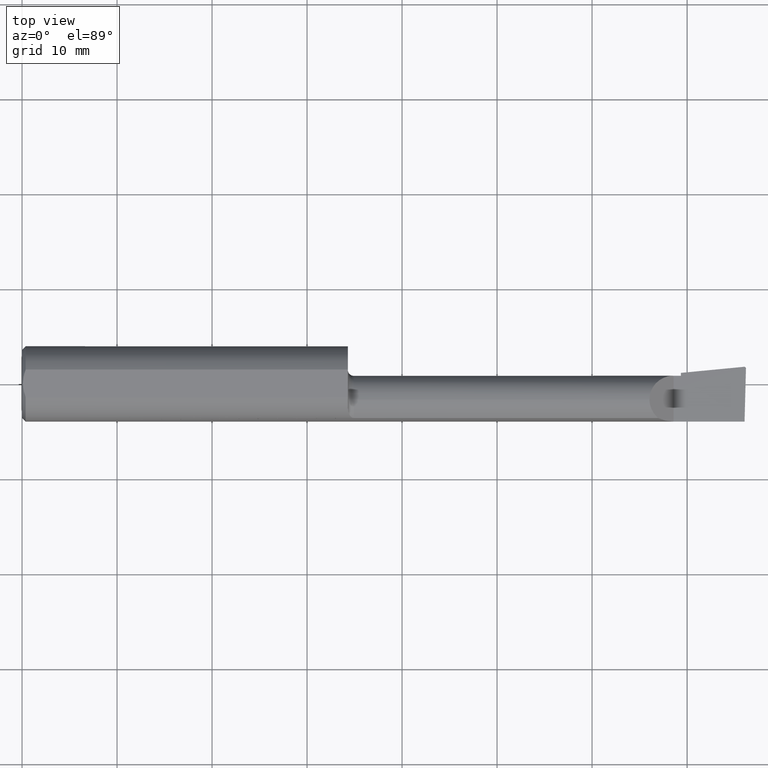
[diagram: clean part render]
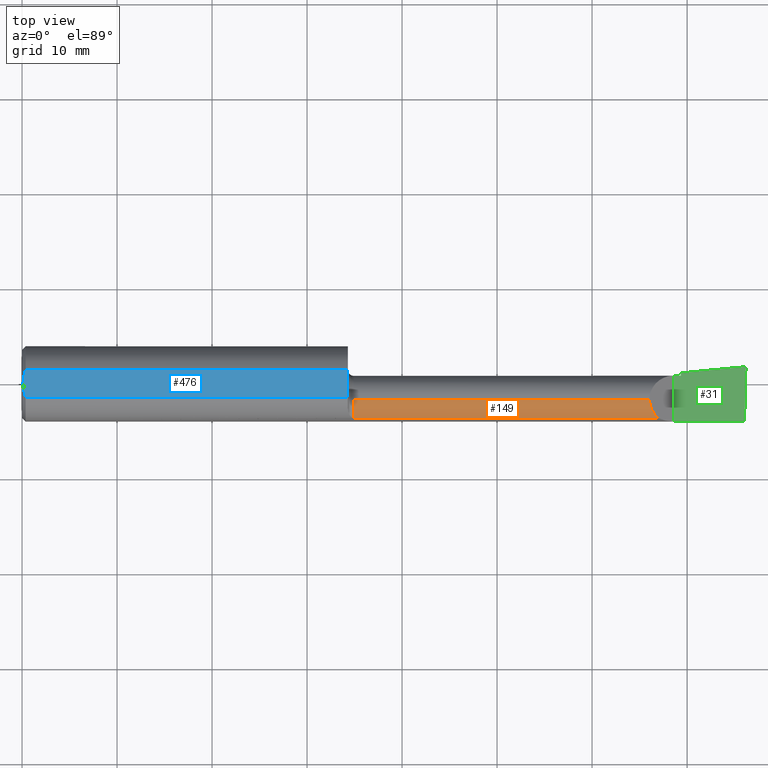
[diagram: same view with three faces highlighted in distinct colors, each labeled with its STEP entity id]
A machine part, top view with three faces highlighted in distinct colors.
Their STEP definitions:

[orange] entity #149 — the highlighted cylindrical surface (edge-blend (fillet) strip) has radius 2.5375 mm, axis along (-1, -0, -0).
#2 = CARTESIAN_POINT ( 'NONE',  ( 0.000000000000000000, -0.06599999999999998923, 0.000000000000000000 ) ) ;
#34 = ORIENTED_EDGE ( 'NONE', *, *, #321, .F. ) ;
#36 = CARTESIAN_POINT ( 'NONE',  ( 2.600099999999999412, -0.09571819601686556989, 0.09989999999999998881 ) ) ;
#40 = VECTOR ( 'NONE', #169, 39.37007874015748143 ) ;
#43 = DIRECTION ( 'NONE',  ( 0.000000000000000000, 0.000000000000000000, 1.000000000000000000 ) ) ;
#54 = VECTOR ( 'NONE', #591, 39.37007874015748143 ) ;
#71 = CARTESIAN_POINT ( 'NONE',  ( 1.375000000000000222, -0.06599999999999998923, 0.09989999999999990554 ) ) ;
#96 = CARTESIAN_POINT ( 'NONE',  ( 2.635154559332284041, -0.1419939393939393946, 0.06484544066771590065 ) ) ;
#149 = ADVANCED_FACE ( 'NONE', ( #446 ), #566, .T. ) ;
#156 = VERTEX_POINT ( 'NONE', #323 ) ;
#157 = CARTESIAN_POINT ( 'NONE',  ( 2.612547924827750112, -0.1227037540429563867, 0.08745207517224931615 ) ) ;
#169 = DIRECTION ( 'NONE',  ( -1.000000000000000000, -0.000000000000000000, -0.000000000000000000 ) ) ;
#190 = VERTEX_POINT ( 'NONE', #71 ) ;
#204 = ORIENTED_EDGE ( 'NONE', *, *, #697, .T. ) ;
#211 = DIRECTION ( 'NONE',  ( 0.000000000000000000, 0.000000000000000000, 1.000000000000000000 ) ) ;
#259 = CARTESIAN_POINT ( 'NONE',  ( 1.375000000000000222, -0.1419939393939392003, 0.06484544066771598392 ) ) ;
#283 = LINE ( 'NONE', #536, #54 ) ;
#292 = EDGE_LOOP ( 'NONE', ( #778, #582, #34, #204 ) ) ;
#295 = CARTESIAN_POINT ( 'NONE',  ( 0.000000000000000000, -0.06599999999999998923, 0.09989999999999998881 ) ) ;
#297 = EDGE_CURVE ( 'NONE', #156, #190, #470, .T. ) ;
#321 = EDGE_CURVE ( 'NONE', #631, #190, #518, .T. ) ;
#323 = CARTESIAN_POINT ( 'NONE',  ( 2.600099999999999412, -0.06599999999999998923, 0.09989999999999998881 ) ) ;
#404 = CARTESIAN_POINT ( 'NONE',  ( 2.600099999999999412, -0.06599999999999998923, 0.09989999999999998881 ) ) ;
#416 = AXIS2_PLACEMENT_3D ( 'NONE', #531, #783, #43 ) ;
#446 = FACE_OUTER_BOUND ( 'NONE', #292, .T. ) ;
#449 = DIRECTION ( 'NONE',  ( -1.000000000000000000, -0.000000000000000000, -0.000000000000000000 ) ) ;
#470 = LINE ( 'NONE', #295, #40 ) ;
#518 = CIRCLE ( 'NONE', #416, 0.09989999999999990554 ) ;
#531 = CARTESIAN_POINT ( 'NONE',  ( 1.375000000000000222, -0.06599999999999998923, 0.000000000000000000 ) ) ;
#536 = CARTESIAN_POINT ( 'NONE',  ( 2.052500000000000213, -0.1419939393939393391, 0.06484544066771595616 ) ) ;
#560 =( BOUNDED_CURVE ( )  B_SPLINE_CURVE ( 3, ( #96, #157, #36, #404 ),
 .UNSPECIFIED., .F., .T. ) 
 B_SPLINE_CURVE_WITH_KNOTS ( ( 4, 4 ),
 ( 5.418794317430680074, 6.283185307179586232 ),
 .UNSPECIFIED. ) 
 CURVE ( )  GEOMETRIC_REPRESENTATION_ITEM ( )  RATIONAL_B_SPLINE_CURVE ( ( 1.000000000000000000, 0.9386988813357770578, 0.9386988813357770578, 1.000000000000000000 ) ) 
 REPRESENTATION_ITEM ( '' )  );
#566 = CYLINDRICAL_SURFACE ( 'NONE', #755, 0.09989999999999998881 ) ;
#582 = ORIENTED_EDGE ( 'NONE', *, *, #297, .T. ) ;
#591 = DIRECTION ( 'NONE',  ( 1.000000000000000000, 0.000000000000000000, 0.000000000000000000 ) ) ;
#631 = VERTEX_POINT ( 'NONE', #259 ) ;
#653 = CARTESIAN_POINT ( 'NONE',  ( 2.635154559332284041, -0.1419939393939393946, 0.06484544066771590065 ) ) ;
#694 = EDGE_CURVE ( 'NONE', #724, #156, #560, .T. ) ;
#697 = EDGE_CURVE ( 'NONE', #631, #724, #283, .T. ) ;
#724 = VERTEX_POINT ( 'NONE', #653 ) ;
#755 = AXIS2_PLACEMENT_3D ( 'NONE', #2, #449, #211 ) ;
#778 = ORIENTED_EDGE ( 'NONE', *, *, #694, .T. ) ;
#783 = DIRECTION ( 'NONE',  ( -1.000000000000000000, -0.000000000000000000, -0.000000000000000000 ) ) ;

[blue] entity #476 — the highlighted planar face has unit normal (0, -0, -1).
#5 = CARTESIAN_POINT ( 'NONE',  ( 1.350000000000000311, 0.05756040305626788228, 0.1450999999999999512 ) ) ;
#28 = CARTESIAN_POINT ( 'NONE',  ( 0.004000000000000238608, 1.884449684559922719E-17, 0.1450999999999999790 ) ) ;
#50 = CARTESIAN_POINT ( 'NONE',  ( 0.01499999999999999424, -0.05756040305626774350, 0.1451000000000000068 ) ) ;
#67 = VECTOR ( 'NONE', #633, 39.37007874015748143 ) ;
#76 = CARTESIAN_POINT ( 'NONE',  ( 0.004000000000000238608, 1.884449684559922719E-17, 0.1450999999999999790 ) ) ;
#91 = CARTESIAN_POINT ( 'NONE',  ( 0.008818052469297050708, -0.03886761757380372689, 0.1451000000000000068 ) ) ;
#110 = LINE ( 'NONE', #386, #808 ) ;
#124 = CARTESIAN_POINT ( 'NONE',  ( 0.005030132703184962174, 0.01970541148932064557, 0.1451000000000000068 ) ) ;
#132 = CARTESIAN_POINT ( 'NONE',  ( 1.350000000000000311, 0.2061000000000000332, 0.1450999999999999512 ) ) ;
#155 = CARTESIAN_POINT ( 'NONE',  ( 0.01161840624095555018, -0.04838974479540033430, 0.1451000000000000345 ) ) ;
#166 = DIRECTION ( 'NONE',  ( -1.000000000000000000, -0.000000000000000000, -0.000000000000000000 ) ) ;
#195 = VERTEX_POINT ( 'NONE', #5 ) ;
#244 = CARTESIAN_POINT ( 'NONE',  ( 3.000000000000000444, 0.2061000000000000332, 0.1450999999999999512 ) ) ;
#245 = EDGE_CURVE ( 'NONE', #195, #320, #514, .T. ) ;
#252 = DIRECTION ( 'NONE',  ( 0.000000000000000000, 1.000000000000000000, -1.656870447394628358E-16 ) ) ;
#267 = ORIENTED_EDGE ( 'NONE', *, *, #524, .F. ) ;
#281 = EDGE_CURVE ( 'NONE', #320, #455, #718, .T. ) ;
#287 = CARTESIAN_POINT ( 'NONE',  ( 1.350000000000000311, -0.05756040305626776432, 0.1451000000000000068 ) ) ;
#293 = VECTOR ( 'NONE', #166, 39.37007874015748143 ) ;
#300 = ORIENTED_EDGE ( 'NONE', *, *, #281, .F. ) ;
#320 = VERTEX_POINT ( 'NONE', #287 ) ;
#339 = CARTESIAN_POINT ( 'NONE',  ( 0.005011318927233133005, -0.01959047621504276041, 0.1450999999999999790 ) ) ;
#356 = CARTESIAN_POINT ( 'NONE',  ( 0.004000000000000188301, 0.009855731042683137794, 0.1450999999999999790 ) ) ;
#359 = VERTEX_POINT ( 'NONE', #657 ) ;
#360 = DIRECTION ( 'NONE',  ( 0.000000000000000000, -1.656870447394628358E-16, -1.000000000000000000 ) ) ;
#368 = CARTESIAN_POINT ( 'NONE',  ( 0.01499999999999999424, 0.05756040305626788228, 0.1450999999999999235 ) ) ;
#372 = ORIENTED_EDGE ( 'NONE', *, *, #245, .F. ) ;
#379 = EDGE_CURVE ( 'NONE', #455, #667, #495, .T. ) ;
#382 = DIRECTION ( 'NONE',  ( 1.000000000000000000, 0.000000000000000000, 0.000000000000000000 ) ) ;
#386 = CARTESIAN_POINT ( 'NONE',  ( 0.000000000000000000, 0.05756040305626788228, 0.1450999999999999235 ) ) ;
#418 = EDGE_CURVE ( 'NONE', #667, #359, #430, .T. ) ;
#422 = PLANE ( 'NONE',  #769 ) ;
#424 = CARTESIAN_POINT ( 'NONE',  ( 0.01158831187866387127, 0.04830813087846574233, 0.1450999999999999512 ) ) ;
#426 = ORIENTED_EDGE ( 'NONE', *, *, #379, .F. ) ;
#430 = B_SPLINE_CURVE_WITH_KNOTS ( 'NONE', 3,
 ( #607, #356, #124, #493, #424, #368 ),
 .UNSPECIFIED., .F., .F.,
 ( 4, 2, 4 ),
 ( 0.002889203944960327779, 0.003632851267233512538, 0.004376498589506697297 ),
 .UNSPECIFIED. ) ;
#455 = VERTEX_POINT ( 'NONE', #50 ) ;
#476 = ADVANCED_FACE ( 'NONE', ( #551 ), #422, .F. ) ;
#493 = CARTESIAN_POINT ( 'NONE',  ( 0.008823987512428478272, 0.03887788046871691605, 0.1450999999999999790 ) ) ;
#495 = B_SPLINE_CURVE_WITH_KNOTS ( 'NONE', 3,
 ( #707, #155, #91, #339, #589, #28 ),
 .UNSPECIFIED., .F., .F.,
 ( 4, 2, 4 ),
 ( 0.001402484879066372495, 0.002145844412013350570, 0.002889203944960327779 ),
 .UNSPECIFIED. ) ;
#514 = LINE ( 'NONE', #132, #67 ) ;
#524 = EDGE_CURVE ( 'NONE', #359, #195, #110, .T. ) ;
#551 = FACE_OUTER_BOUND ( 'NONE', #656, .T. ) ;
#589 = CARTESIAN_POINT ( 'NONE',  ( 0.004000000000000188301, -0.009851916903761191377, 0.1450999999999999512 ) ) ;
#607 = CARTESIAN_POINT ( 'NONE',  ( 0.004000000000000238608, 1.884449684559922719E-17, 0.1450999999999999790 ) ) ;
#633 = DIRECTION ( 'NONE',  ( 0.000000000000000000, -1.000000000000000000, 1.656870447394628358E-16 ) ) ;
#634 = ORIENTED_EDGE ( 'NONE', *, *, #418, .F. ) ;
#656 = EDGE_LOOP ( 'NONE', ( #372, #267, #634, #426, #300 ) ) ;
#657 = CARTESIAN_POINT ( 'NONE',  ( 0.01499999999999999424, 0.05756040305626788228, 0.1450999999999999235 ) ) ;
#667 = VERTEX_POINT ( 'NONE', #76 ) ;
#707 = CARTESIAN_POINT ( 'NONE',  ( 0.01499999999999999424, -0.05756040305626774350, 0.1451000000000000068 ) ) ;
#710 = CARTESIAN_POINT ( 'NONE',  ( 0.000000000000000000, -0.05756040305626783371, 0.1450999999999999512 ) ) ;
#718 = LINE ( 'NONE', #710, #293 ) ;
#769 = AXIS2_PLACEMENT_3D ( 'NONE', #244, #360, #252 ) ;
#808 = VECTOR ( 'NONE', #382, 39.37007874015748143 ) ;

[green] entity #31 — the highlighted planar face has unit normal (-0, 0, -1).
#6 = EDGE_LOOP ( 'NONE', ( #242, #39, #606, #406, #511, #331, #44, #317 ) ) ;
#17 = LINE ( 'NONE', #759, #728 ) ;
#31 = ADVANCED_FACE ( 'NONE', ( #681 ), #51, .F. ) ;
#38 = CARTESIAN_POINT ( 'NONE',  ( 2.993512870449295704, 0.07124616680637038679, -8.537024980200822558E-17 ) ) ;
#39 = ORIENTED_EDGE ( 'NONE', *, *, #506, .T. ) ;
#44 = ORIENTED_EDGE ( 'NONE', *, *, #641, .F. ) ;
#51 = PLANE ( 'NONE',  #599 ) ;
#55 = DIRECTION ( 'NONE',  ( -1.460108795288649722E-16, 0.000000000000000000, -1.000000000000000000 ) ) ;
#56 = CARTESIAN_POINT ( 'NONE',  ( 2.999910038027484571, 0.06846449087509602627, -6.926818219033491601E-17 ) ) ;
#58 = VERTEX_POINT ( 'NONE', #800 ) ;
#66 = VECTOR ( 'NONE', #141, 39.37007874015748143 ) ;
#99 = EDGE_CURVE ( 'NONE', #217, #461, #742, .T. ) ;
#105 = VECTOR ( 'NONE', #576, 39.37007874015748143 ) ;
#107 = CARTESIAN_POINT ( 'NONE',  ( 2.999806390372760756, 0.06450634663141942282, -6.825008366731280479E-17 ) ) ;
#111 = CARTESIAN_POINT ( 'NONE',  ( 3.000000000000000444, -0.2500000000000000555, -6.829619984160658046E-17 ) ) ;
#131 = VECTOR ( 'NONE', #350, 39.37007874015748854 ) ;
#140 = CARTESIAN_POINT ( 'NONE',  ( 2.700000000000000178, -0.1560999999999999888, -2.449293598294708386E-17 ) ) ;
#141 = DIRECTION ( 'NONE',  ( 0.000000000000000000, 1.000000000000000000, 0.000000000000000000 ) ) ;
#143 = EDGE_CURVE ( 'NONE', #523, #571, #688, .T. ) ;
#173 = CARTESIAN_POINT ( 'NONE',  ( 2.993512870449295704, 0.07124616680637038679, -8.537024980200822558E-17 ) ) ;
#193 = LINE ( 'NONE', #684, #105 ) ;
#194 = CARTESIAN_POINT ( 'NONE',  ( 2.729999999999999982, -0.2500000000000000555, -2.887326236881301627E-17 ) ) ;
#196 = DIRECTION ( 'NONE',  ( -0.000000000000000000, 1.000000000000000000, -0.000000000000000000 ) ) ;
#217 = VERTEX_POINT ( 'NONE', #577 ) ;
#219 = CARTESIAN_POINT ( 'NONE',  ( 2.700000000000000178, 0.03389999999999994407, -2.449293598294708386E-17 ) ) ;
#231 = CARTESIAN_POINT ( 'NONE',  ( 2.993108609909204798, 0.07123643460739943756, -6.827509968873246391E-17 ) ) ;
#242 = ORIENTED_EDGE ( 'NONE', *, *, #367, .T. ) ;
#248 = CARTESIAN_POINT ( 'NONE',  ( 2.994029609882220999, -0.1561000000000000165, -6.741913824051282974E-17 ) ) ;
#285 = VERTEX_POINT ( 'NONE', #219 ) ;
#315 = LINE ( 'NONE', #436, #640 ) ;
#316 = DIRECTION ( 'NONE',  ( -1.000000000000000000, -0.000000000000000000, -0.000000000000000000 ) ) ;
#317 = ORIENTED_EDGE ( 'NONE', *, *, #143, .F. ) ;
#331 = ORIENTED_EDGE ( 'NONE', *, *, #581, .F. ) ;
#342 = CARTESIAN_POINT ( 'NONE',  ( 2.992906680581874923, 0.07121699102466755305, -6.726049803458688058E-17 ) ) ;
#350 = DIRECTION ( 'NONE',  ( 0.02617694830780385035, 0.9996573249755590362, -3.765352607662575481E-18 ) ) ;
#354 = CARTESIAN_POINT ( 'NONE',  ( 2.997312560284805638, 0.07124616680637020638, -6.888892218056962819E-17 ) ) ;
#358 =( BOUNDED_CURVE ( )  B_SPLINE_CURVE ( 3, ( #38, #787, #231, #342 ),
 .UNSPECIFIED., .F., .T. ) 
 B_SPLINE_CURVE_WITH_KNOTS ( ( 4, 4 ),
 ( 3.511516179717425690, 3.604018710825942495 ),
 .UNSPECIFIED. ) 
 CURVE ( )  GEOMETRIC_REPRESENTATION_ITEM ( )  RATIONAL_B_SPLINE_CURVE ( ( 1.000000000000000000, 0.9992870672494020834, 0.9992870672494020834, 1.000000000000000000 ) ) 
 REPRESENTATION_ITEM ( '' )  );
#366 = VERTEX_POINT ( 'NONE', #655 ) ;
#367 = EDGE_CURVE ( 'NONE', #523, #474, #723, .T. ) ;
#371 = EDGE_CURVE ( 'NONE', #366, #58, #358, .T. ) ;
#406 = ORIENTED_EDGE ( 'NONE', *, *, #567, .F. ) ;
#436 = CARTESIAN_POINT ( 'NONE',  ( 2.700000000000000178, -0.2500000000000000555, -2.449293598294708386E-17 ) ) ;
#461 = VERTEX_POINT ( 'NONE', #487 ) ;
#474 = VERTEX_POINT ( 'NONE', #740 ) ;
#487 = CARTESIAN_POINT ( 'NONE',  ( 2.729999999999999982, 0.04590195698666842128, 3.713605866387357905E-16 ) ) ;
#502 = CARTESIAN_POINT ( 'NONE',  ( 5.398554261502604010E-32, -0.1560999999999999333, 3.697364387449882376E-16 ) ) ;
#506 = EDGE_CURVE ( 'NONE', #474, #366, #668, .T. ) ;
#511 = ORIENTED_EDGE ( 'NONE', *, *, #99, .F. ) ;
#523 = VERTEX_POINT ( 'NONE', #248 ) ;
#552 = DIRECTION ( 'NONE',  ( -1.000000000000000000, 0.000000000000000000, 1.460108795288649722E-16 ) ) ;
#567 = EDGE_CURVE ( 'NONE', #461, #58, #193, .T. ) ;
#569 = DIRECTION ( 'NONE',  ( 1.000000000000000000, 0.000000000000000000, 0.000000000000000000 ) ) ;
#571 = VERTEX_POINT ( 'NONE', #140 ) ;
#576 = DIRECTION ( 'NONE',  ( 0.9953961983671787417, 0.09584575252022466130, -1.453386744032802967E-16 ) ) ;
#577 = CARTESIAN_POINT ( 'NONE',  ( 2.729999999999999982, 0.03390000000000008284, 3.697364387449886320E-16 ) ) ;
#581 = EDGE_CURVE ( 'NONE', #285, #217, #17, .T. ) ;
#595 = CARTESIAN_POINT ( 'NONE',  ( 2.991576527842700450, -0.2497794236187493300, -6.706628126323233036E-17 ) ) ;
#599 = AXIS2_PLACEMENT_3D ( 'NONE', #111, #55, #552 ) ;
#606 = ORIENTED_EDGE ( 'NONE', *, *, #371, .T. ) ;
#640 = VECTOR ( 'NONE', #196, 39.37007874015748143 ) ;
#641 = EDGE_CURVE ( 'NONE', #571, #285, #315, .T. ) ;
#655 = CARTESIAN_POINT ( 'NONE',  ( 2.993512870449295704, 0.07124616680637038679, -8.537024980200822558E-17 ) ) ;
#668 =( BOUNDED_CURVE ( )  B_SPLINE_CURVE ( 3, ( #107, #56, #354, #173 ),
 .UNSPECIFIED., .F., .T. ) 
 B_SPLINE_CURVE_WITH_KNOTS ( ( 4, 4 ),
 ( 1.953092279228260342, 3.511516179717425690 ),
 .UNSPECIFIED. ) 
 CURVE ( )  GEOMETRIC_REPRESENTATION_ITEM ( )  RATIONAL_B_SPLINE_CURVE ( ( 1.000000000000000000, 0.8076450242550627934, 0.8076450242550627934, 1.000000000000000000 ) ) 
 REPRESENTATION_ITEM ( '' )  );
#681 = FACE_OUTER_BOUND ( 'NONE', #6, .T. ) ;
#684 = CARTESIAN_POINT ( 'NONE',  ( 1.567853742648958271, -0.06599999999999998923, 1.408127348081912221E-16 ) ) ;
#688 = LINE ( 'NONE', #502, #793 ) ;
#723 = LINE ( 'NONE', #595, #131 ) ;
#728 = VECTOR ( 'NONE', #569, 39.37007874015748143 ) ;
#740 = CARTESIAN_POINT ( 'NONE',  ( 2.999806390372760756, 0.06450634663141942282, -6.825008366731280479E-17 ) ) ;
#742 = LINE ( 'NONE', #194, #66 ) ;
#759 = CARTESIAN_POINT ( 'NONE',  ( 5.398554261502604010E-32, 0.03389999999999997876, 3.697364387449882376E-16 ) ) ;
#787 = CARTESIAN_POINT ( 'NONE',  ( 2.993310817358658671, 0.07124616680637040067, -6.830462417627445134E-17 ) ) ;
#793 = VECTOR ( 'NONE', #316, 39.37007874015748143 ) ;
#800 = CARTESIAN_POINT ( 'NONE',  ( 2.992906680581874923, 0.07121699102466755305, -6.726049803458688058E-17 ) ) ;